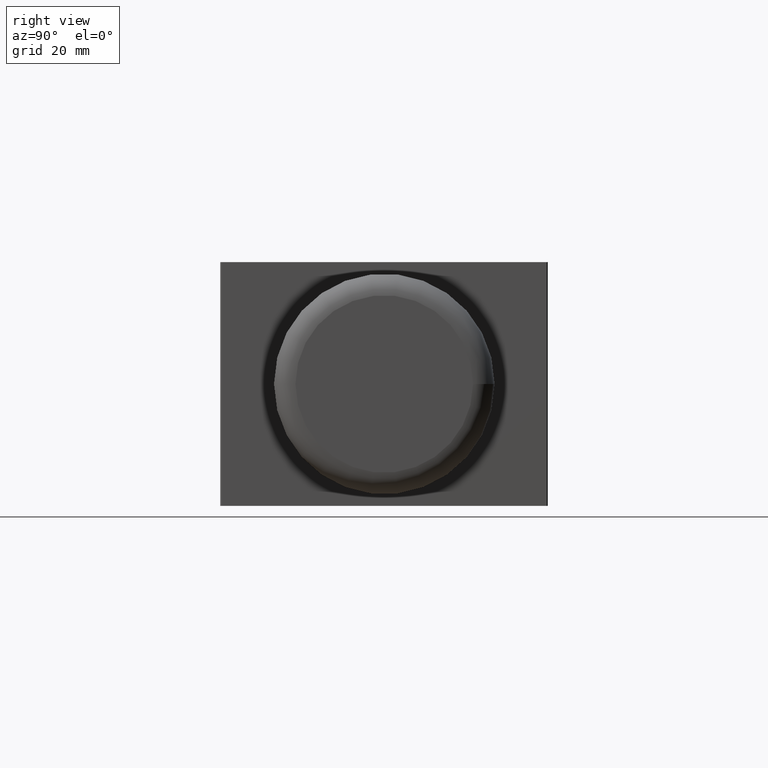
[diagram: clean part render]
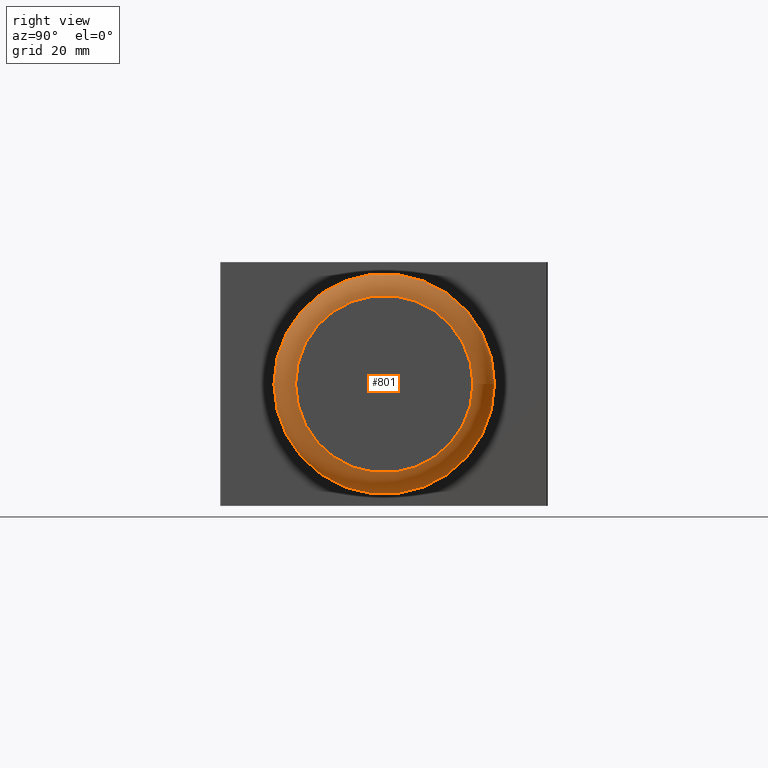
[diagram: same view with one face highlighted and labeled with its STEP entity id]
A machine part, right view. The second image highlights one B-rep face of the part: STEP entity #801.
In plain terms, the highlighted toroidal blend (fillet) surface has major radius 16.375 mm and minor (blend) radius 4 mm.
Its self-contained STEP definition (entity closure, byte-faithful):
#767=CARTESIAN_POINT('',(10.879259947838932,16.298116139419633,0.0));
#768=VERTEX_POINT('',#767);
#769=CARTESIAN_POINT('',(10.879259947838932,-0.076883860580367,0.0));
#770=DIRECTION('',(1.0,0.0,0.0));
#771=DIRECTION('',(0.0,1.0,0.0));
#772=AXIS2_PLACEMENT_3D('',#769,#770,#771);
#773=CIRCLE('',#772,16.375000000000000);
#774=EDGE_CURVE('',#768,#768,#773,.T.);
#782=CARTESIAN_POINT('',(14.879259947838932,-0.076883860580368,0.0));
#783=DIRECTION('',(1.0,4.693247E-018,0.0));
#784=DIRECTION('',(0.0,0.0,-1.0));
#785=AXIS2_PLACEMENT_3D('',#782,#783,#784);
#786=TOROIDAL_SURFACE('',#785,16.375000000000004,4.0);
#787=CARTESIAN_POINT('',(18.879259947838932,16.298116139419637,0.0));
#788=VERTEX_POINT('',#787);
#789=CARTESIAN_POINT('',(18.879259947838932,-0.076883860580367,0.0));
#790=DIRECTION('',(1.0,0.0,0.0));
#791=DIRECTION('',(0.0,1.0,0.0));
#792=AXIS2_PLACEMENT_3D('',#789,#790,#791);
#793=CIRCLE('',#792,16.375000000000007);
#794=EDGE_CURVE('',#788,#788,#793,.T.);
#795=ORIENTED_EDGE('',*,*,#794,.F.);
#796=EDGE_LOOP('',(#795));
#797=FACE_OUTER_BOUND('',#796,.T.);
#798=ORIENTED_EDGE('',*,*,#774,.T.);
#799=EDGE_LOOP('',(#798));
#800=FACE_BOUND('',#799,.T.);
#801=ADVANCED_FACE('',(#797,#800),#786,.T.);